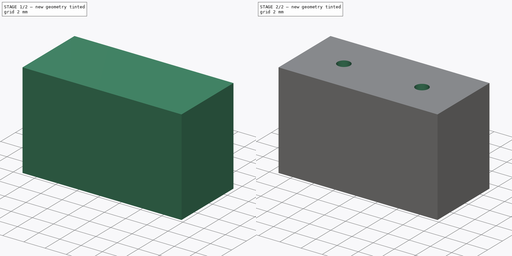
[diagram: build sequence overview — one tinted view per stage of 2, left to right]
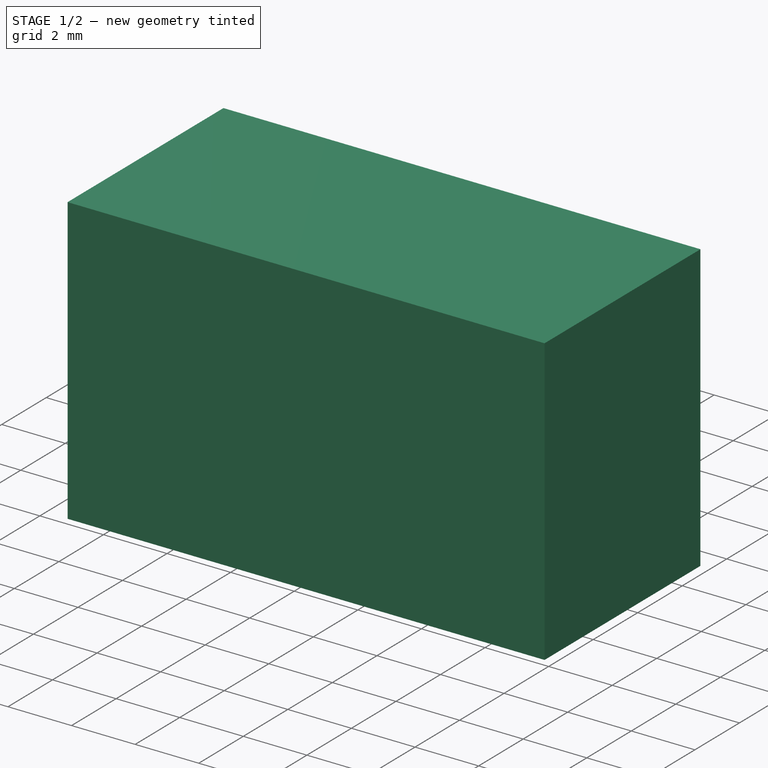
[diagram: stage 1 of 2 — iso view after this stage's code; geometry added in this stage tinted green]
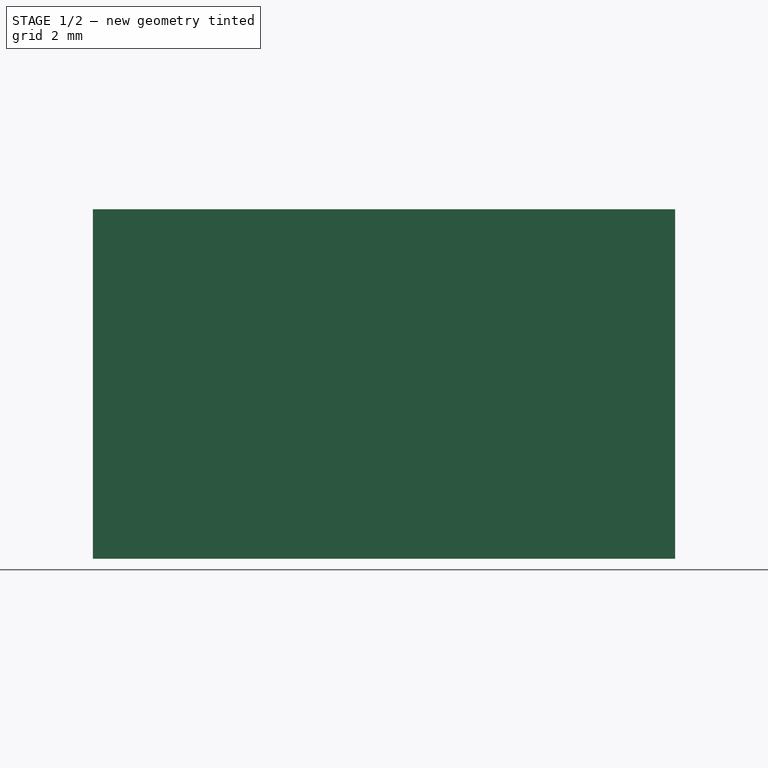
[diagram: stage 1 of 2 — front view after this stage's code; geometry added in this stage tinted green]
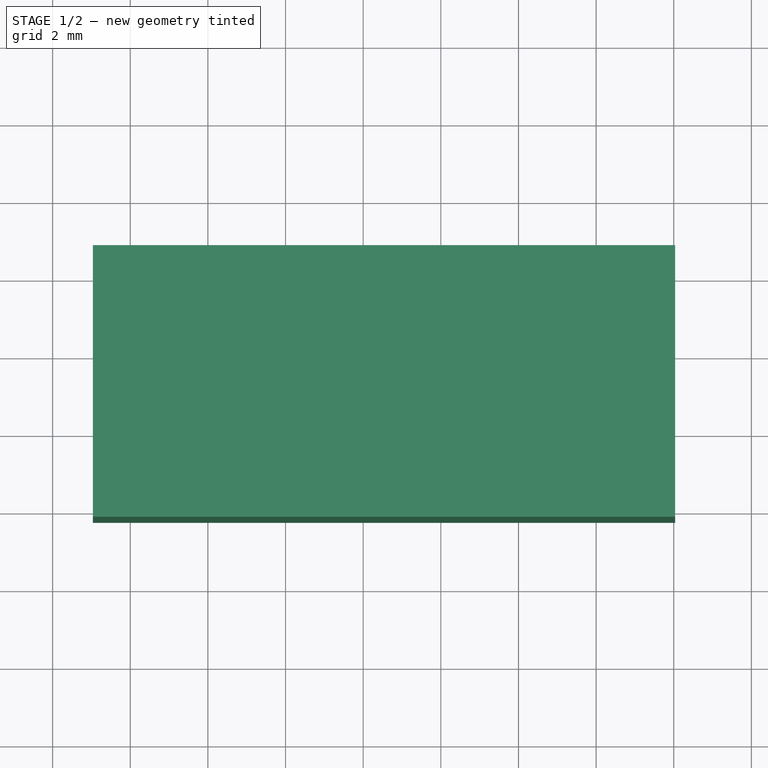
[diagram: stage 1 of 2 — top view after this stage's code; geometry added in this stage tinted green]
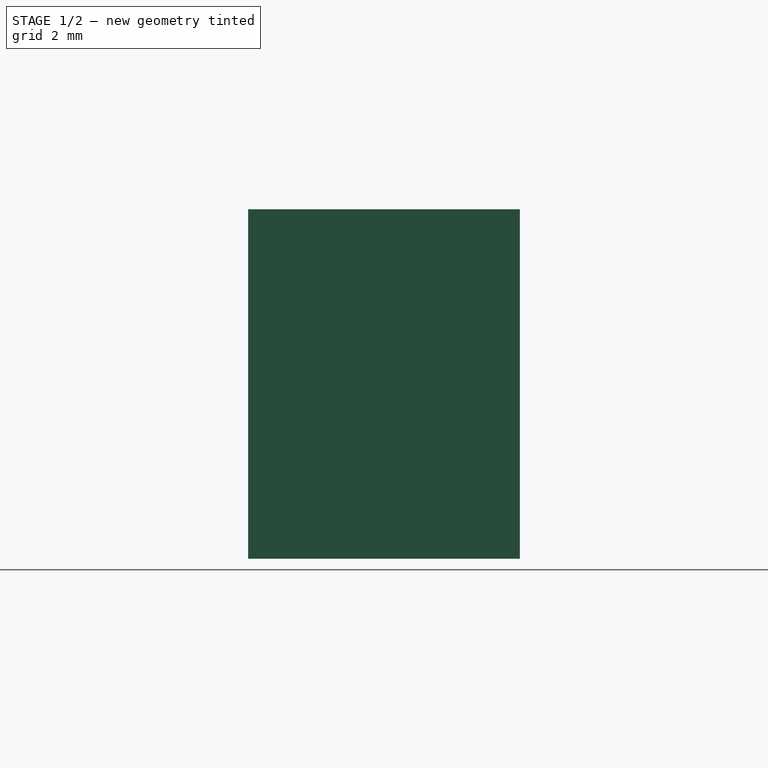
[diagram: stage 1 of 2 — right view after this stage's code; geometry added in this stage tinted green]
FCSTD DOCUMENT  (FreeCAD 0.14R3700 (Git))
Label: sensor_infrarojos
License: CC-BY 3.0
LicenseURL: http://creativecommons.org/licenses/by/3.0/
objects: Sketcher::SketchObject×3, PartDesign::Pocket×2, PartDesign::Pad×1
note: 9 computed .brp shape members not serialized (recipe doc carries the construction recipe); baked Part::Feature solids carry a one-line shape summary decoded from their .brp

FEATURE [Sketcher::SketchObject] Sketch001
  Placement = pos=(0,0,0) rot=(-1,0,0;3.14159rad)
  sketch-geometry (4):
    g0: LineSegment StartX=-6.96399 StartY=6.23248 StartZ=0 EndX=8.03601 EndY=6.23248 EndZ=0
    g1: LineSegment StartX=8.03601 StartY=6.23248 StartZ=0 EndX=8.03601 EndY=-0.767522 EndZ=0
    g2: LineSegment StartX=8.03601 StartY=-0.767522 StartZ=0 EndX=-6.96399 EndY=-0.767522 EndZ=0
    g3: LineSegment StartX=-6.96399 StartY=-0.767522 StartZ=0 EndX=-6.96399 EndY=6.23248 EndZ=0
  constraints (10):
    c: Coincident(g0,g1)
    c: Coincident(g1,g2)
    c: Coincident(g2,g3)
    c: Coincident(g3,g0)
    c: Horizontal(g0)
    c: Horizontal(g2)
    c: Vertical(g1)
    c: Vertical(g3)
    c: DistanceY(g1) = -7
    c: DistanceX(g0) = 15
FEATURE [PartDesign::Pad] Pad
  Length = 9
  Length2 = 10
  Placement = pos=(0,0,0) rot=(-1,0,0;3.14159rad)
  Sketch = -> Sketch001
  Type = 0
FEATURE [Sketcher::SketchObject] Sketch
  Placement = pos=(0,0,-9) rot=(1,0,0;3.14159rad)
  Support = -> Pad [Face6]
  sketch-geometry (2):
    g0: Circle CenterX=-3.25487 CenterY=2.67761 CenterZ=0 NormalX=0 NormalY=0 NormalZ=1 Radius=2.55
    g1: Circle CenterX=4.14429 CenterY=2.78938 CenterZ=0 NormalX=0 NormalY=0 NormalZ=1 Radius=2.55
  constraints (3):
    c: Radius(g0) = 2.55
    c: Radius(g1) = 2.55
    c: Distance(g0,g1) = 7.4
FEATURE [PartDesign::Pocket] Pocket
  Length = 7
  Placement = pos=(0,0,0) rot=(-1,0,0;3.14159rad)
  Sketch = -> Sketch
  Type = 0
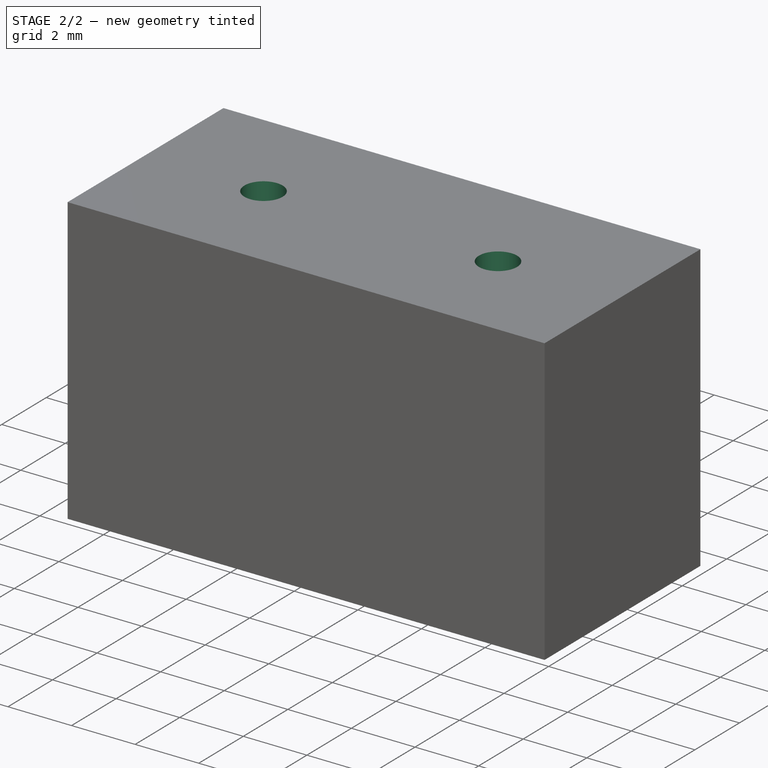
[diagram: stage 2 of 2 — iso view after this stage's code; geometry added in this stage tinted green]
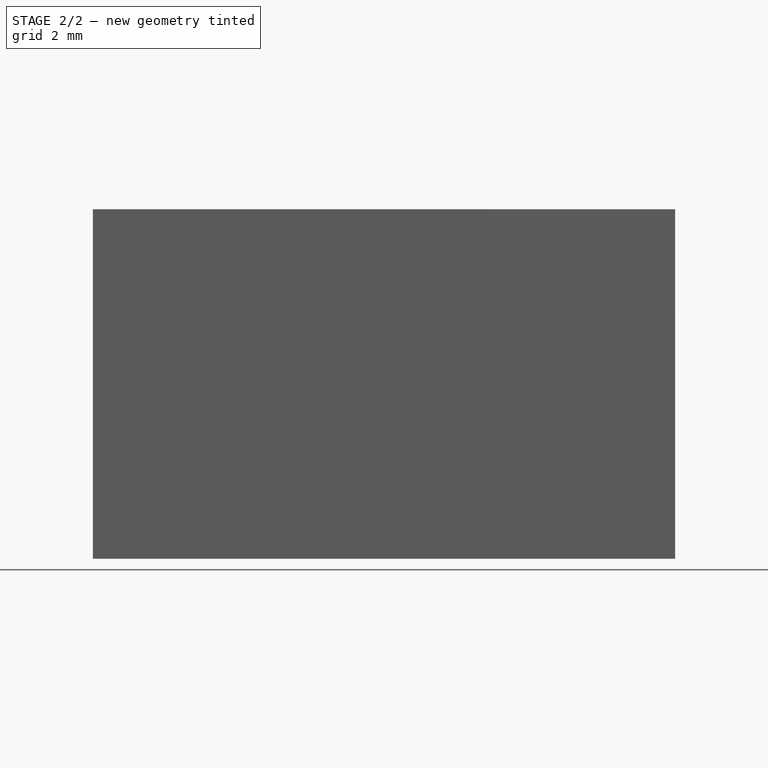
[diagram: stage 2 of 2 — front view after this stage's code; geometry added in this stage tinted green]
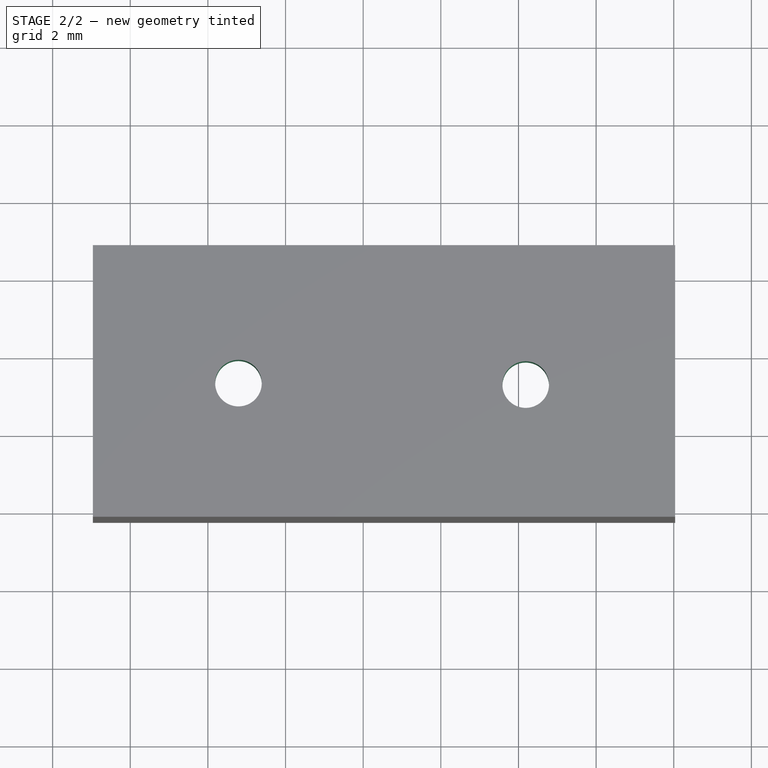
[diagram: stage 2 of 2 — top view after this stage's code; geometry added in this stage tinted green]
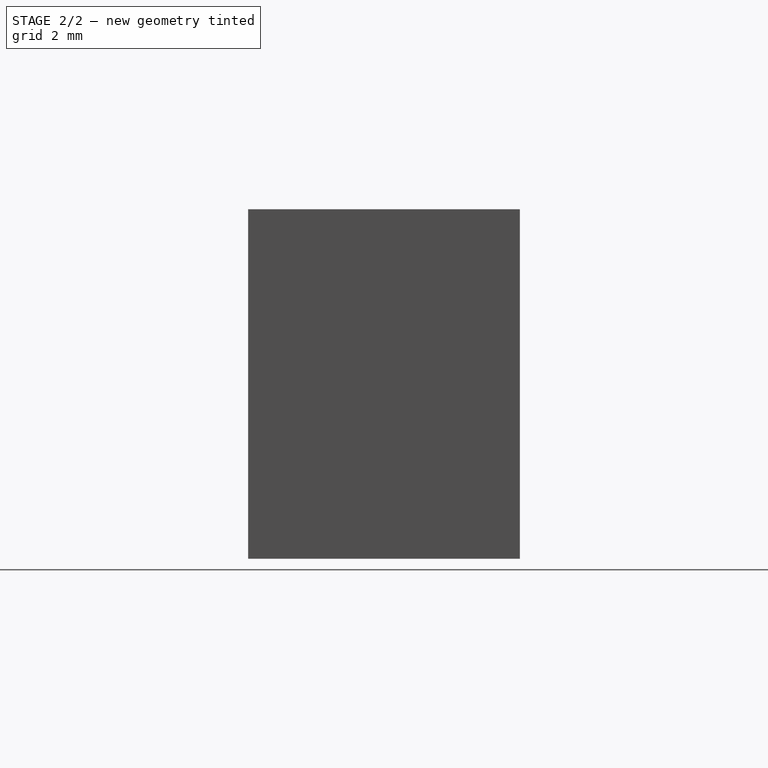
[diagram: stage 2 of 2 — right view after this stage's code; geometry added in this stage tinted green]
FEATURE [Sketcher::SketchObject] Sketch002
  Placement = pos=(0,0,-2) rot=(1,0,0;3.14159rad)
  Support = -> Pocket [Face10]
  sketch-geometry (2):
    g0: Circle CenterX=-3.21318 CenterY=2.7877 CenterZ=0 NormalX=0 NormalY=0 NormalZ=1 Radius=0.6
    g1: Circle CenterX=4.18651 CenterY=2.82565 CenterZ=0 NormalX=0 NormalY=0 NormalZ=1 Radius=0.6
  constraints (2):
    c: Radius(g0) = 0.6
    c: Radius(g1) = 0.6
FEATURE [PartDesign::Pocket] Pocket001
  Length = 5
  Placement = pos=(0,0,0) rot=(-1,0,0;3.14159rad)
  Sketch = -> Sketch002
  Type = 0
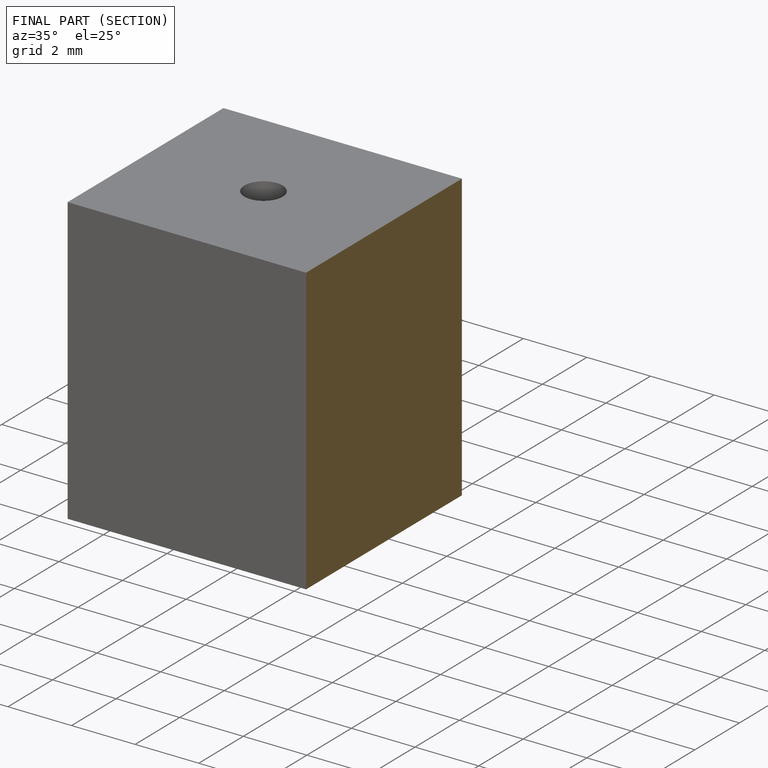
[diagram: finished part — half-section view (interior)]
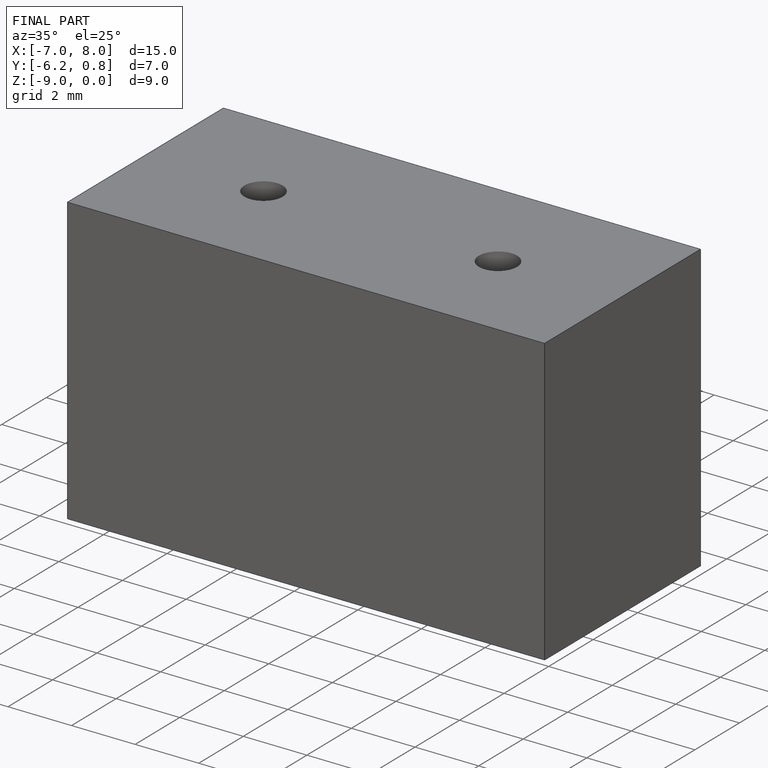
[diagram: finished part — iso view with bounding-box wireframe]
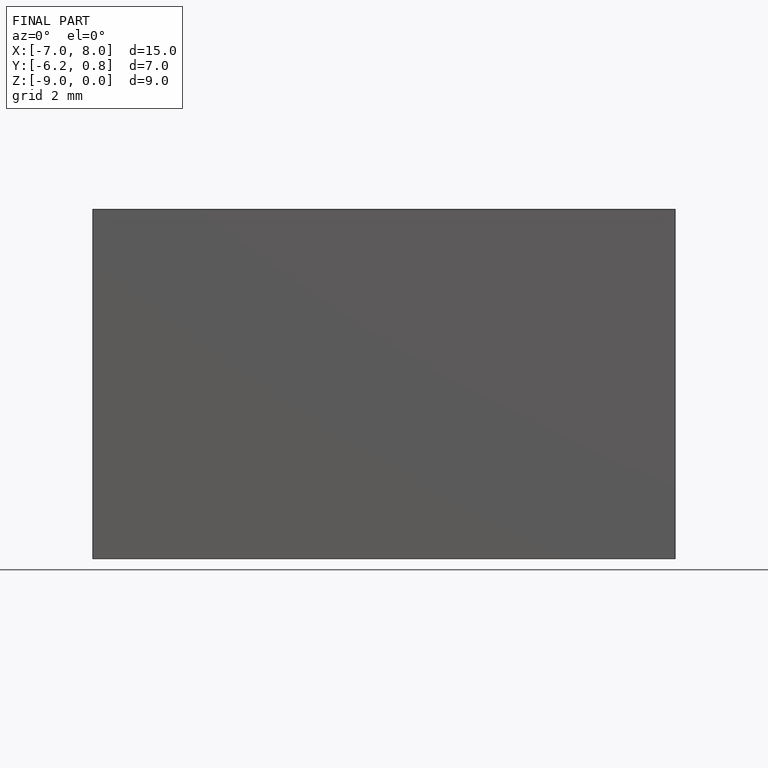
[diagram: finished part — front view with bounding-box wireframe]
